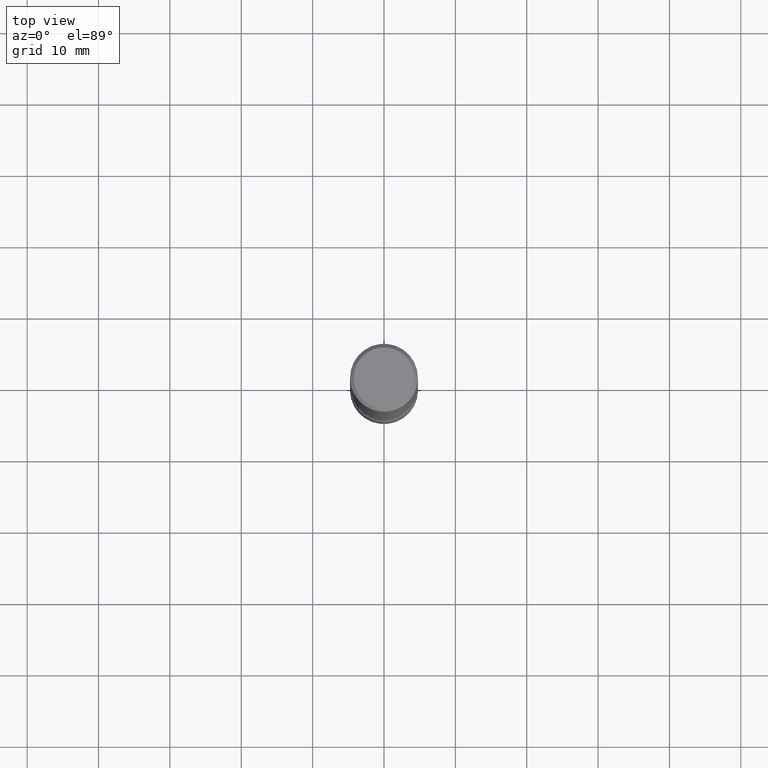
[diagram: clean part render]
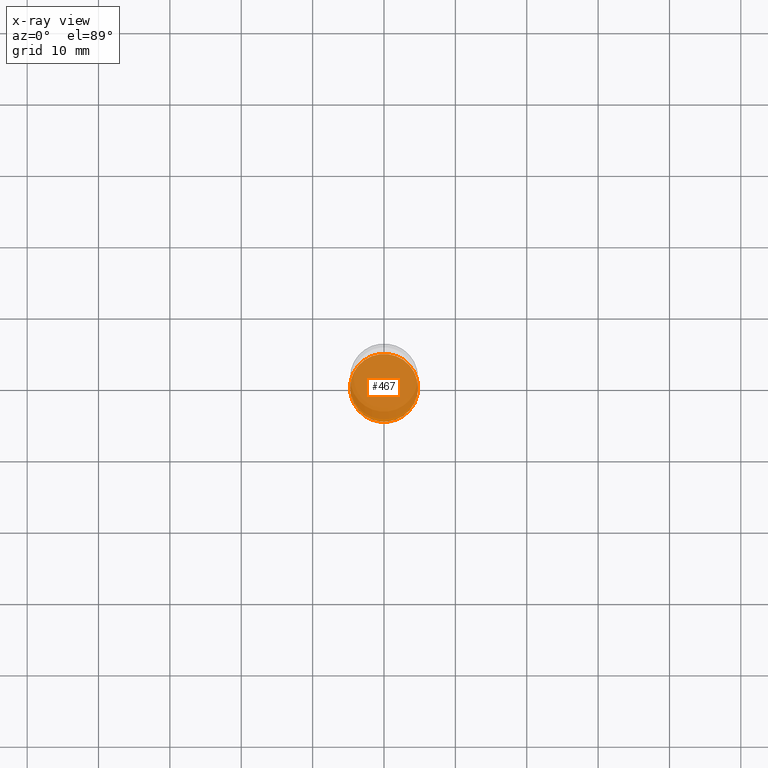
[diagram: x-ray — body ghosted, one internal face saturated and labeled with its STEP entity id]
A machine part, top view, then the same camera in x-ray: the body is ghosted and one INTERNAL B-rep face — a face not visible from any outside direction — is saturated and labeled: STEP entity #467.
In plain terms, the highlighted planar face has unit normal (0, -0, -1).
Its self-contained STEP definition (entity closure, byte-faithful):
#1 = AXIS2_PLACEMENT_3D ( 'NONE', #51, #486, #481 ) ;
#13 = ORIENTED_EDGE ( 'NONE', *, *, #240, .T. ) ;
#28 = DIRECTION ( 'NONE',  ( -1.000000000000000000, 6.982962677686265922E-15, -4.876176775795935793E-29 ) ) ;
#51 = CARTESIAN_POINT ( 'NONE',  ( 7.947773620101696182E-29, -1.134731435124022600E-14, -3.250000000000000444 ) ) ;
#143 = EDGE_CURVE ( 'NONE', #306, #517, #501, .T. ) ;
#211 = FACE_OUTER_BOUND ( 'NONE', #482, .T. ) ;
#225 = AXIS2_PLACEMENT_3D ( 'NONE', #379, #510, #291 ) ;
#240 = EDGE_CURVE ( 'NONE', #517, #306, #421, .T. ) ;
#251 = PLANE ( 'NONE',  #544 ) ;
#286 = DIRECTION ( 'NONE',  ( 2.438088387897960049E-29, -3.491481338843145188E-15, -1.000000000000000000 ) ) ;
#288 = ORIENTED_EDGE ( 'NONE', *, *, #143, .T. ) ;
#291 = DIRECTION ( 'NONE',  ( 1.000000000000000000, -6.982962677686269866E-15, 0.000000000000000000 ) ) ;
#306 = VERTEX_POINT ( 'NONE', #488 ) ;
#379 = CARTESIAN_POINT ( 'NONE',  ( 7.947773620101696182E-29, -1.134731435124022600E-14, -3.250000000000000444 ) ) ;
#421 = CIRCLE ( 'NONE', #1, 0.1875000000000000833 ) ;
#467 = ADVANCED_FACE ( 'NONE', ( #211 ), #251, .F. ) ;
#481 = DIRECTION ( 'NONE',  ( 1.000000000000000000, -6.982962677686269866E-15, 0.000000000000000000 ) ) ;
#482 = EDGE_LOOP ( 'NONE', ( #13, #288 ) ) ;
#486 = DIRECTION ( 'NONE',  ( -2.445468806185136597E-29, 3.491481338843145583E-15, 1.000000000000000000 ) ) ;
#488 = CARTESIAN_POINT ( 'NONE',  ( -0.1875000000000000833, -1.121960778359092137E-14, -3.250000000000000444 ) ) ;
#501 = CIRCLE ( 'NONE', #225, 0.1875000000000000833 ) ;
#510 = DIRECTION ( 'NONE',  ( -2.445468806185136597E-29, 3.491481338843145583E-15, 1.000000000000000000 ) ) ;
#517 = VERTEX_POINT ( 'NONE', #539 ) ;
#539 = CARTESIAN_POINT ( 'NONE',  ( 0.1875000000000000833, -1.265661985330640259E-14, -3.250000000000000444 ) ) ;
#544 = AXIS2_PLACEMENT_3D ( 'NONE', #545, #286, #28 ) ;
#545 = CARTESIAN_POINT ( 'NONE',  ( 7.947773620101696182E-29, -1.134731435124022600E-14, -3.250000000000000444 ) ) ;